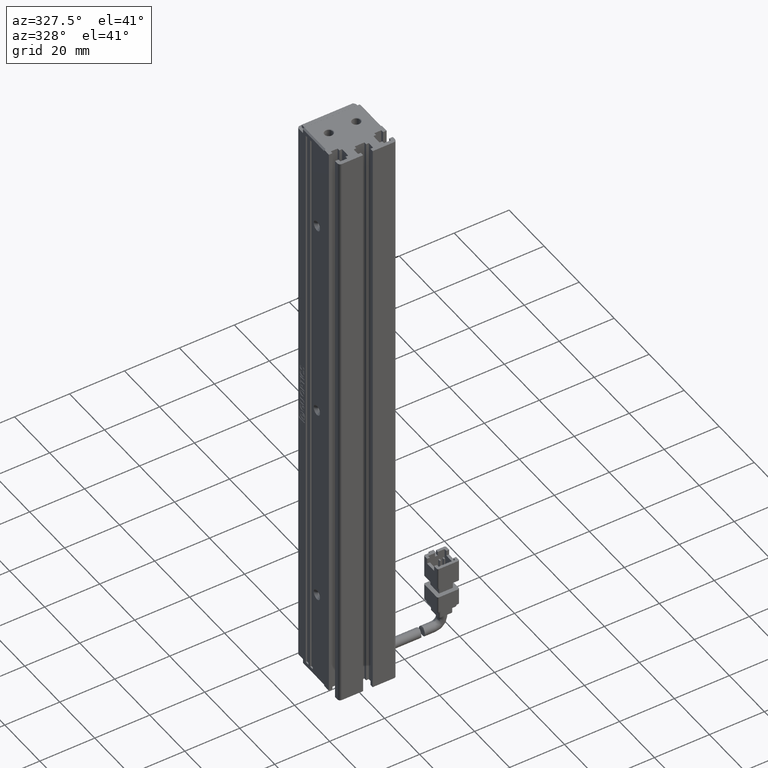
[diagram: clean part render]
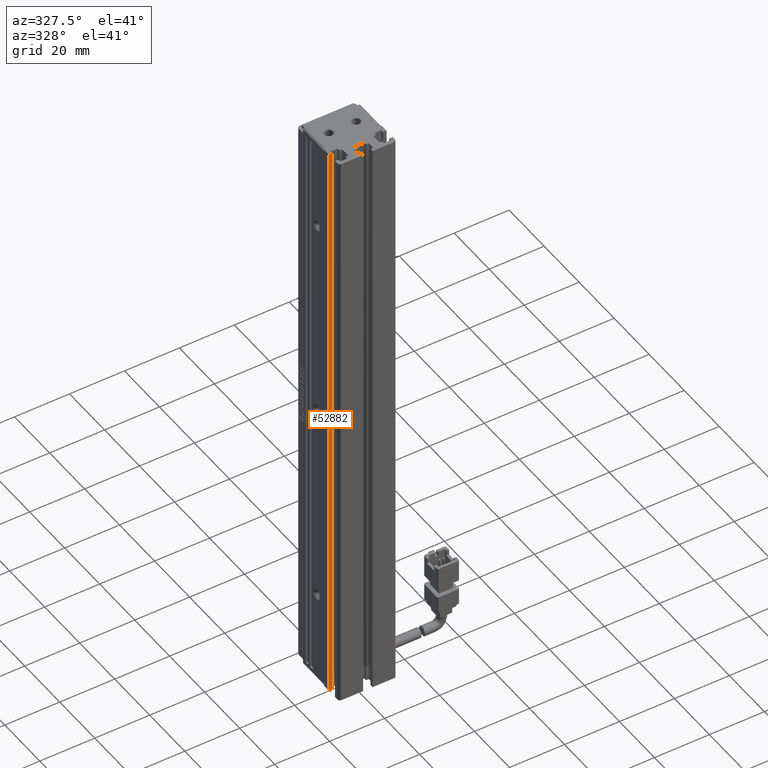
[diagram: same view with one face highlighted and labeled with its STEP entity id]
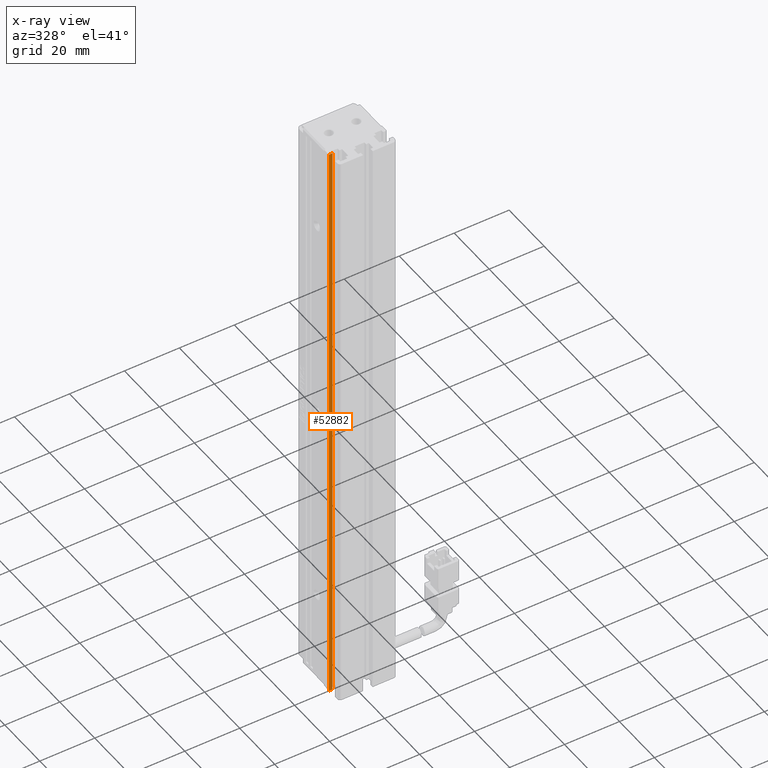
[diagram: x-ray of the same camera — body ghosted, the highlighted face saturated]
A machine part, auxiliary view. The second image highlights one B-rep face of the part: STEP entity #52882.
The next image is the same camera in x-ray: the body ghosted, the highlighted face saturated — about 0% of this face is hidden behind the body in this view.
In plain terms, the highlighted planar face has unit normal (0, 1, 0).
Its self-contained STEP definition (entity closure, byte-faithful):
#1122 = VERTEX_POINT ( 'NONE', #26059 ) ;
#2994 = EDGE_LOOP ( 'NONE', ( #24827, #12441, #9611, #16493 ) ) ;
#9611 = ORIENTED_EDGE ( 'NONE', *, *, #33543, .F. ) ;
#11673 = VECTOR ( 'NONE', #34311, 1000.000000000000000 ) ;
#12441 = ORIENTED_EDGE ( 'NONE', *, *, #22701, .F. ) ;
#12578 = DIRECTION ( 'NONE',  ( 0.0000000000000000000, 1.000000000000000000, 0.0000000000000000000 ) ) ;
#12799 = CARTESIAN_POINT ( 'NONE',  ( 40.92537974683542500, 16.79073232304837400, -224.0000000000000000 ) ) ;
#15176 = EDGE_CURVE ( 'NONE', #1122, #45803, #34057, .T. ) ;
#15346 = CARTESIAN_POINT ( 'NONE',  ( 31.72537974683542600, 16.79073232304837400, -224.0000000000000000 ) ) ;
#16493 = ORIENTED_EDGE ( 'NONE', *, *, #15176, .T. ) ;
#16781 = CARTESIAN_POINT ( 'NONE',  ( 40.92537974683542500, 16.79073232304837400, -6.000000000000005300 ) ) ;
#18802 = EDGE_CURVE ( 'NONE', #37511, #45803, #32198, .T. ) ;
#22160 = DIRECTION ( 'NONE',  ( -0.0000000000000000000, 0.0000000000000000000, -1.000000000000000000 ) ) ;
#22528 = LINE ( 'NONE', #43113, #31061 ) ;
#22701 = EDGE_CURVE ( 'NONE', #32381, #37511, #22528, .T. ) ;
#24285 = CARTESIAN_POINT ( 'NONE',  ( 30.42537974683542100, 16.79073232304837400, -6.000000000000005300 ) ) ;
#24827 = ORIENTED_EDGE ( 'NONE', *, *, #18802, .F. ) ;
#26059 = CARTESIAN_POINT ( 'NONE',  ( 30.42537974683542100, 16.79073232304837400, -224.0000000000000000 ) ) ;
#26931 = LINE ( 'NONE', #42438, #50653 ) ;
#28146 = PLANE ( 'NONE',  #49376 ) ;
#31061 = VECTOR ( 'NONE', #35005, 1000.000000000000000 ) ;
#32198 = LINE ( 'NONE', #51071, #45334 ) ;
#32381 = VERTEX_POINT ( 'NONE', #24285 ) ;
#33543 = EDGE_CURVE ( 'NONE', #1122, #32381, #26931, .T. ) ;
#34057 = LINE ( 'NONE', #12799, #11673 ) ;
#34311 = DIRECTION ( 'NONE',  ( 1.000000000000000000, 0.0000000000000000000, 0.0000000000000000000 ) ) ;
#35005 = DIRECTION ( 'NONE',  ( 1.000000000000000000, 0.0000000000000000000, 0.0000000000000000000 ) ) ;
#35329 = FACE_OUTER_BOUND ( 'NONE', #2994, .T. ) ;
#37511 = VERTEX_POINT ( 'NONE', #45578 ) ;
#42438 = CARTESIAN_POINT ( 'NONE',  ( 30.42537974683542100, 16.79073232304837400, -6.000000000000005300 ) ) ;
#43113 = CARTESIAN_POINT ( 'NONE',  ( 40.92537974683542500, 16.79073232304837400, -6.000000000000005300 ) ) ;
#45334 = VECTOR ( 'NONE', #22160, 1000.000000000000000 ) ;
#45578 = CARTESIAN_POINT ( 'NONE',  ( 31.72537974683542600, 16.79073232304837400, -6.000000000000005300 ) ) ;
#45803 = VERTEX_POINT ( 'NONE', #15346 ) ;
#46015 = DIRECTION ( 'NONE',  ( 0.0000000000000000000, -0.0000000000000000000, 1.000000000000000000 ) ) ;
#46652 = DIRECTION ( 'NONE',  ( 0.0000000000000000000, 0.0000000000000000000, 1.000000000000000000 ) ) ;
#49376 = AXIS2_PLACEMENT_3D ( 'NONE', #16781, #12578, #46015 ) ;
#50653 = VECTOR ( 'NONE', #46652, 1000.000000000000000 ) ;
#51071 = CARTESIAN_POINT ( 'NONE',  ( 31.72537974683542600, 16.79073232304837400, -6.000000000000005300 ) ) ;
#52882 = ADVANCED_FACE ( 'NONE', ( #35329 ), #28146, .F. ) ;